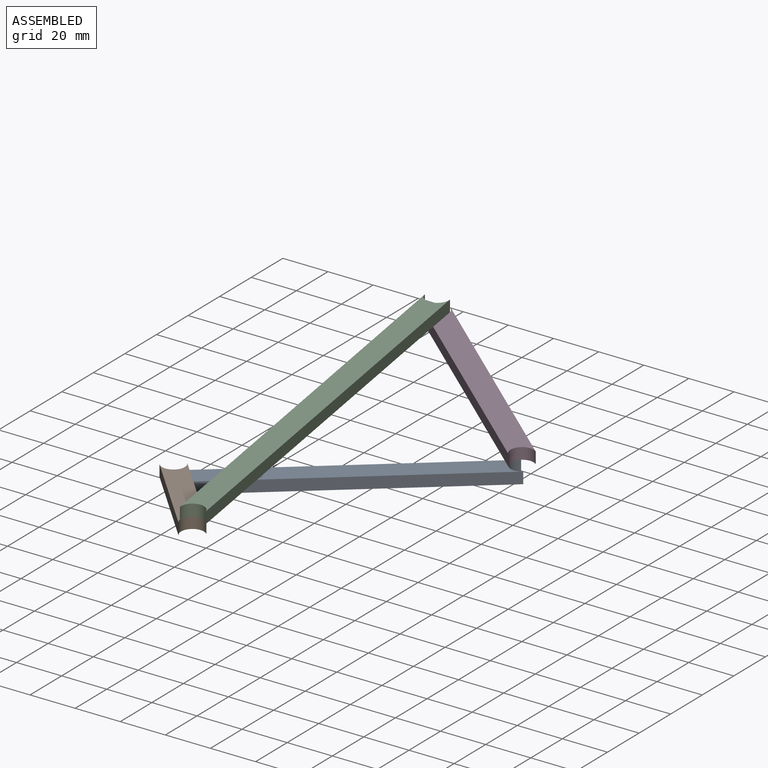
[diagram: assembled view]
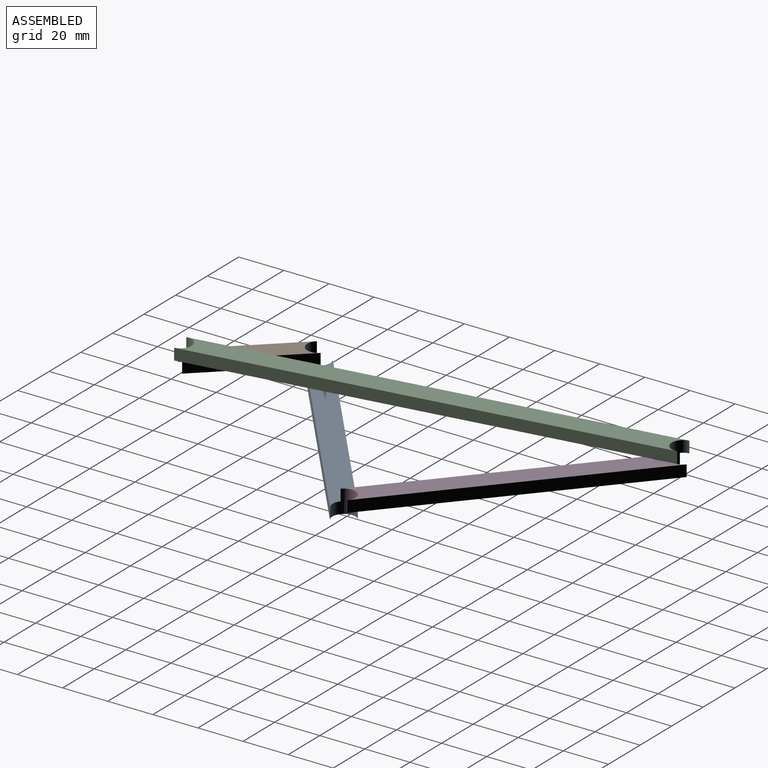
[diagram: assembled view, second angle]
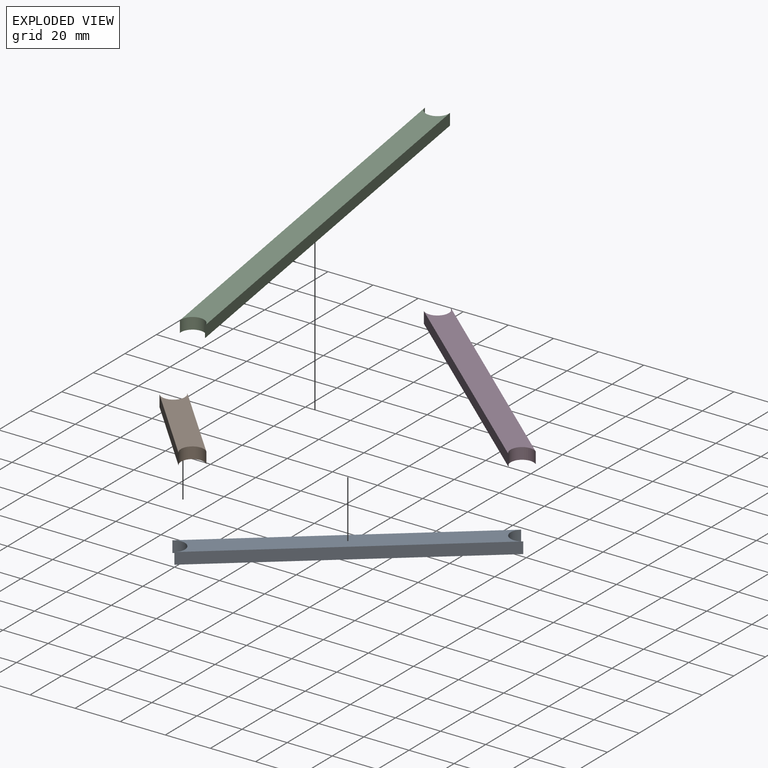
[diagram: exploded view]
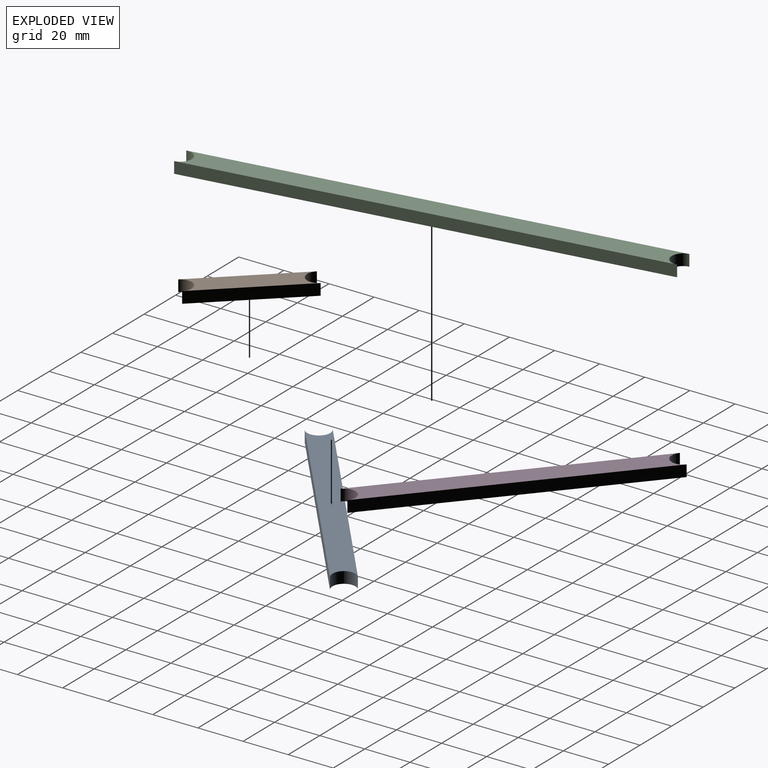
[diagram: exploded view, second angle]
ASSEMBLY  parts=4 mates=4
PART A: 6 faces, bbox 10.2x127x5.1 mm
  f0: cylinder r=5.08mm len=10.16mm, axis (0,0,-1), area 81.1mm2, adj f1,f3,f4,f5
  f1: plane 127x5.08mm, normal (-1,0,0), area 645.2mm2, adj f0,f2,f4,f5
  f2: cylinder r=5.08mm len=10.16mm, axis (0,0,-1), area 81.1mm2, adj f1,f3,f4,f5
  f3: plane 127x5.08mm, normal (1,0,0), area 645.2mm2, adj f0,f2,f4,f5
  f4: plane 127x10.16mm, normal (0,0,1), area 1209.2mm2, adj f0,f1,f2,f3
  f5: plane 127x10.16mm, normal (0,0,-1), area 1209.2mm2, adj f0,f1,f2,f3
PART B: 6 faces, bbox 10.2x50.8x5.1 mm
  f0: cylinder r=5.08mm len=10.16mm, axis (0,0,-1), area 81.1mm2, adj f1,f3,f4,f5
  f1: plane 50.8x5.08mm, normal (-1,0,0), area 258.1mm2, adj f0,f2,f4,f5
  f2: cylinder r=5.08mm len=10.16mm, axis (0,0,-1), area 81.1mm2, adj f1,f3,f4,f5
  f3: plane 50.8x5.08mm, normal (1,0,0), area 258.1mm2, adj f0,f2,f4,f5
  f4: plane 50.8x10.16mm, normal (0,0,1), area 435.1mm2, adj f0,f1,f2,f3
  f5: plane 50.8x10.16mm, normal (0,0,-1), area 435.1mm2, adj f0,f1,f2,f3
PART C: 6 faces, bbox 10.2x203.2x5.1 mm
  f0: cylinder r=5.08mm len=10.16mm, axis (0,0,-1), area 81.1mm2, adj f1,f3,f4,f5
  f1: plane 203.2x5.08mm, normal (-1,0,0), area 1032.3mm2, adj f0,f2,f4,f5
  f2: cylinder r=5.08mm len=10.16mm, axis (0,0,-1), area 81.1mm2, adj f1,f3,f4,f5
  f3: plane 203.2x5.08mm, normal (1,0,0), area 1032.3mm2, adj f0,f2,f4,f5
  f4: plane 203.2x10.16mm, normal (0,0,1), area 1983.4mm2, adj f0,f1,f2,f3
  f5: plane 203.2x10.16mm, normal (0,0,-1), area 1983.4mm2, adj f0,f1,f2,f3
PART D: same geometry as A
PLACE A rot(axis=(0,0,-1),50.9deg) t=(4.46,-202.84,-24.81)mm
PLACE B rot(axis=(0,0,-1),137.2deg) t=(11.84,-199.37,-19.73)mm
PLACE C rot(axis=(0,0,-1),171deg) t=(-162.98,-103.3,-14.65)mm
PLACE D rot(axis=(0,0,-1),131deg) t=(-48.64,-101.07,-19.73)mm
MATE revolute B.f2 <-> A.f2  axis (0,0,-1) through (-60.08,-200.53,-19.73)mm
MATE revolute D.f2 <-> C.f2  axis (0,0,-1) through (-57.45,-37.1,-14.65)mm
MATE revolute C.f0 <-> B.f0  axis (0,0,-1) through (-25.54,-237.78,-14.65)mm
MATE revolute D.f0 <-> A.f0  axis (0,0,-1) through (38.44,-120.38,-19.73)mm
